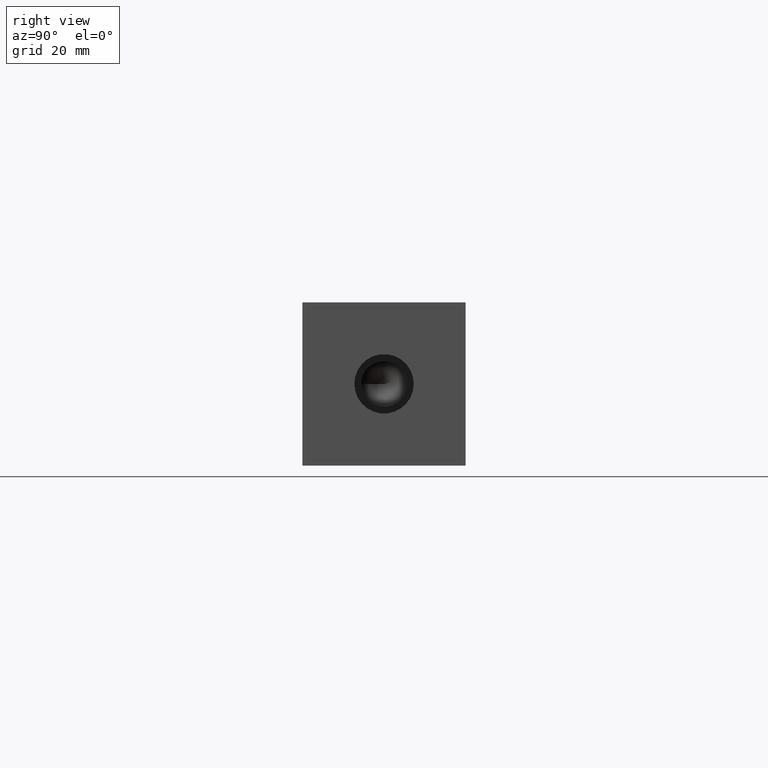
[diagram: clean part render]
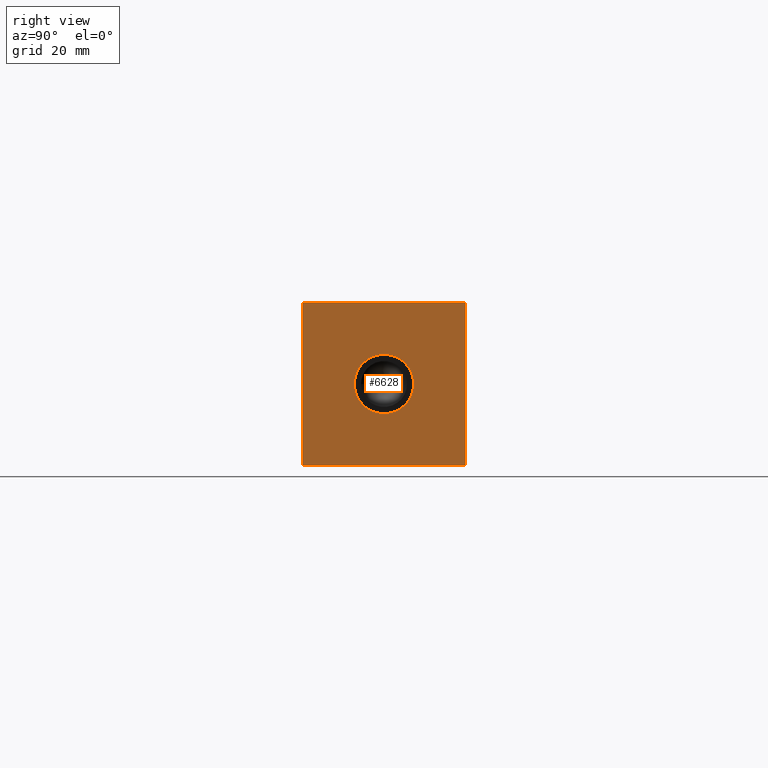
[diagram: same view with one face highlighted and labeled with its STEP entity id]
A machine part, right view. The second image highlights one B-rep face of the part: STEP entity #6628.
In plain terms, the highlighted planar face has unit normal (1, 0, 0).
Its self-contained STEP definition (entity closure, byte-faithful):
#93=CIRCLE('',#6936,6.9342);
#94=CIRCLE('',#6937,6.9342);
#146=FACE_BOUND('',#1084,.T.);
#369=PLANE('',#6952);
#704=FACE_OUTER_BOUND('',#1083,.T.);
#1083=EDGE_LOOP('',(#5899,#5900,#5901,#5902));
#1084=EDGE_LOOP('',(#5903,#5904));
#1346=LINE('',#10111,#2014);
#1756=LINE('',#11216,#2424);
#1757=LINE('',#11219,#2425);
#1758=LINE('',#11220,#2426);
#2014=VECTOR('',#7350,10.);
#2424=VECTOR('',#8234,10.);
#2425=VECTOR('',#8237,10.);
#2426=VECTOR('',#8238,10.);
#2877=VERTEX_POINT('',#10108);
#2878=VERTEX_POINT('',#10110);
#3196=VERTEX_POINT('',#11178);
#3197=VERTEX_POINT('',#11179);
#3208=VERTEX_POINT('',#11214);
#3209=VERTEX_POINT('',#11218);
#3622=EDGE_CURVE('',#2877,#2878,#1346,.T.);
#4092=EDGE_CURVE('',#3196,#3197,#93,.T.);
#4093=EDGE_CURVE('',#3197,#3196,#94,.T.);
#4110=EDGE_CURVE('',#3208,#2878,#1756,.T.);
#4111=EDGE_CURVE('',#3209,#3208,#1757,.T.);
#4112=EDGE_CURVE('',#3209,#2877,#1758,.T.);
#5899=ORIENTED_EDGE('',*,*,#4111,.T.);
#5900=ORIENTED_EDGE('',*,*,#4110,.T.);
#5901=ORIENTED_EDGE('',*,*,#3622,.F.);
#5902=ORIENTED_EDGE('',*,*,#4112,.F.);
#5903=ORIENTED_EDGE('',*,*,#4092,.T.);
#5904=ORIENTED_EDGE('',*,*,#4093,.T.);
#6628=ADVANCED_FACE('',(#704,#146),#369,.T.);
#6936=AXIS2_PLACEMENT_3D('',#11180,#8193,#8194);
#6937=AXIS2_PLACEMENT_3D('',#11181,#8195,#8196);
#6952=AXIS2_PLACEMENT_3D('',#11217,#8235,#8236);
#7350=DIRECTION('',(0.,1.,0.));
#8193=DIRECTION('center_axis',(-1.,0.,0.));
#8194=DIRECTION('ref_axis',(0.,1.,0.));
#8195=DIRECTION('center_axis',(-1.,0.,0.));
#8196=DIRECTION('ref_axis',(0.,1.,0.));
#8234=DIRECTION('',(0.,0.,1.));
#8235=DIRECTION('center_axis',(1.,0.,0.));
#8236=DIRECTION('ref_axis',(0.,1.,0.));
#8237=DIRECTION('',(0.,1.,0.));
#8238=DIRECTION('',(0.,0.,1.));
#10108=CARTESIAN_POINT('',(161.925,0.,38.1));
#10110=CARTESIAN_POINT('',(161.925,38.1,38.1));
#10111=CARTESIAN_POINT('',(161.925,0.,38.1));
#11178=CARTESIAN_POINT('',(161.925,25.9842,19.05));
#11179=CARTESIAN_POINT('',(161.925,12.1158,19.05));
#11180=CARTESIAN_POINT('Origin',(161.925,19.05,19.05));
#11181=CARTESIAN_POINT('Origin',(161.925,19.05,19.05));
#11214=CARTESIAN_POINT('',(161.925,38.1,0.));
#11216=CARTESIAN_POINT('',(161.925,38.1,0.));
#11217=CARTESIAN_POINT('Origin',(161.925,0.,0.));
#11218=CARTESIAN_POINT('',(161.925,0.,0.));
#11219=CARTESIAN_POINT('',(161.925,0.,0.));
#11220=CARTESIAN_POINT('',(161.925,0.,0.));